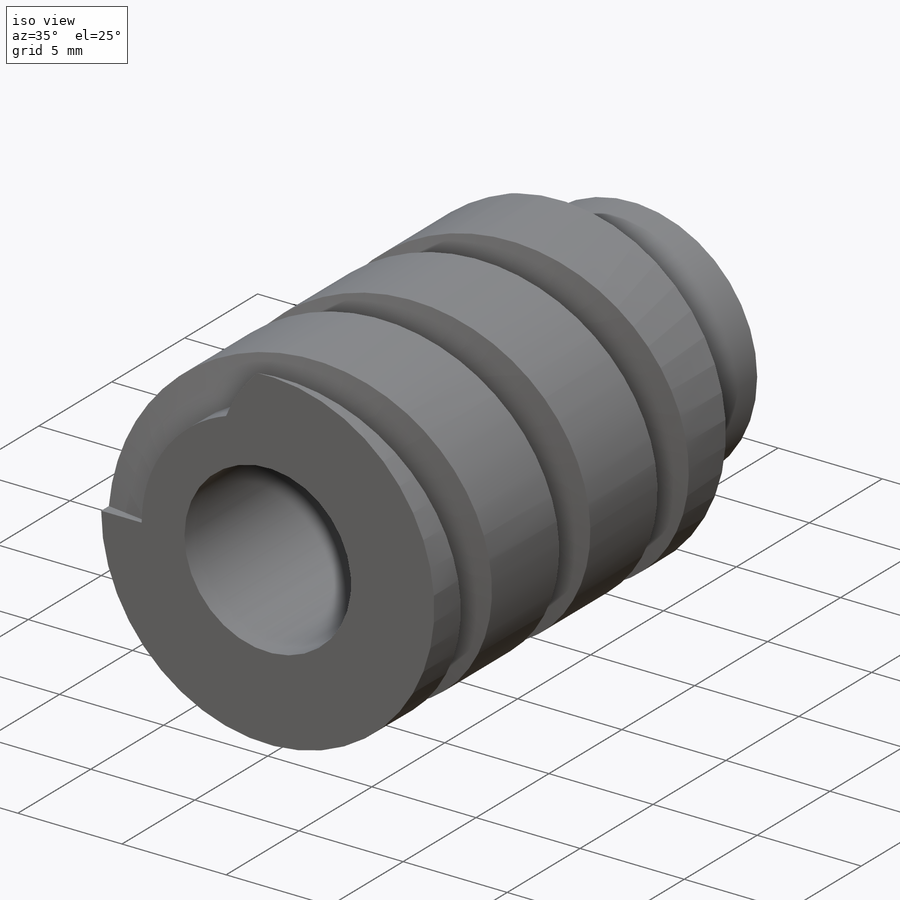
[diagram: iso view]
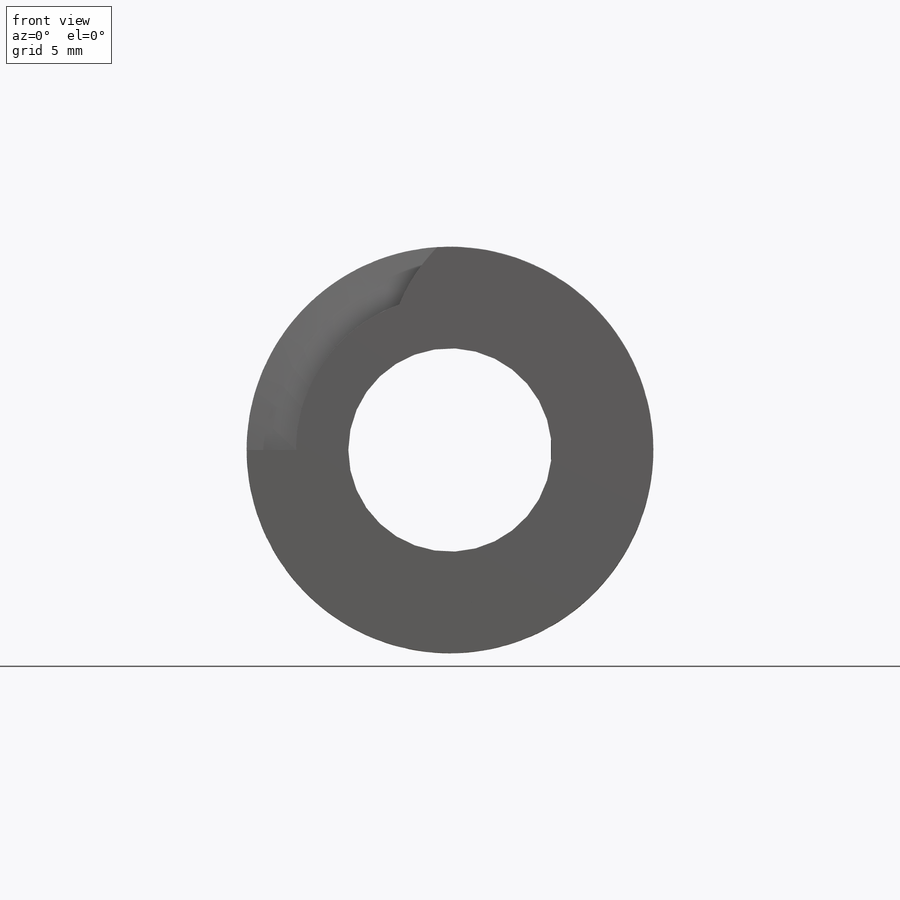
[diagram: front view]
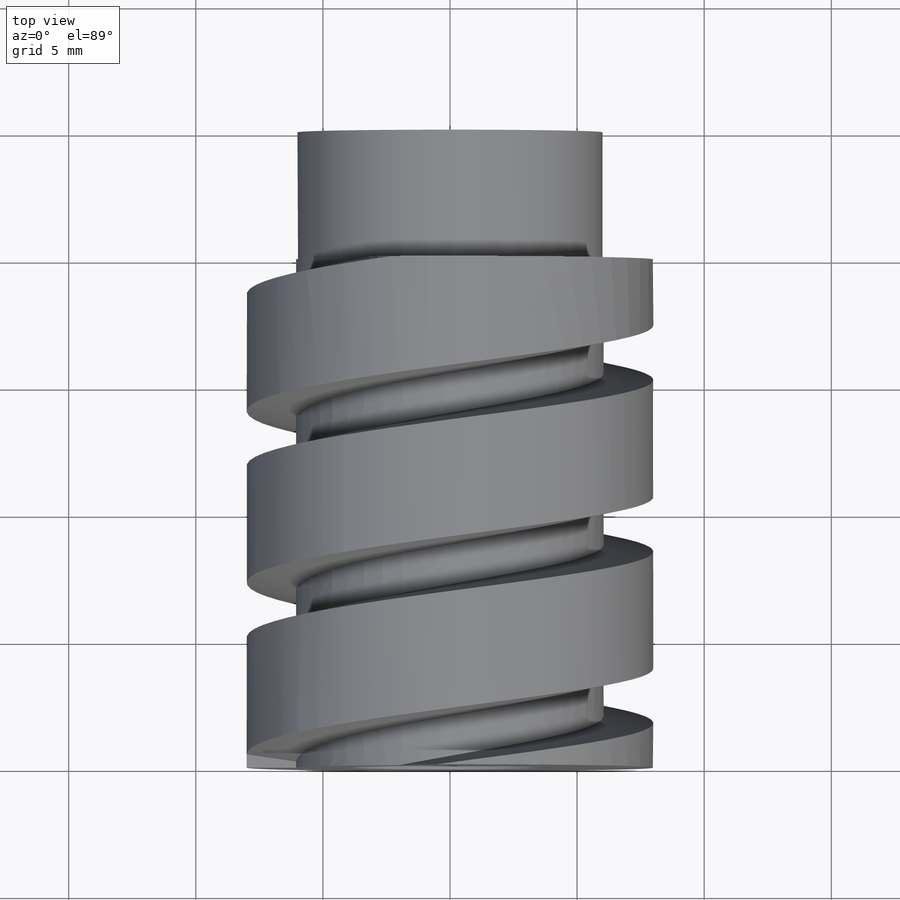
[diagram: top view]
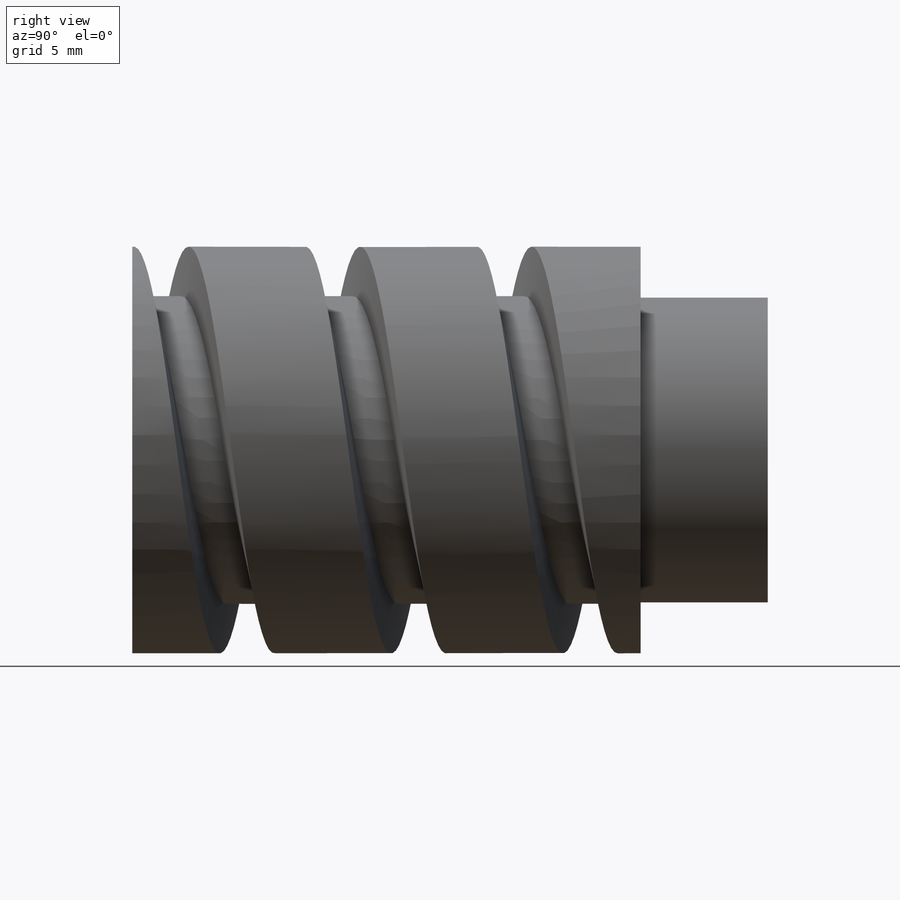
[diagram: right view]
SOLIDWORKS PART (.sldprt)
format: sldprt  version: not decoded by parser v0  size: 461,312 bytes
history: native  units: mm
features: sketch x4, plane x3, extrude x2, material x1, helix x1, sweep x1 (+8 scaffold rows collapsed)
feature tree (20):
  scaffold x8  (default folders/planes/origin — collapsed)
  material  "Material <sin especificar>"
  plane  "Alzado"
  plane  "Planta"
  plane  "Vista lateral"
  sketch  "Croquis1"  dims[D1=~9.723827mm]
  extrude  "Saliente-Extruir1"  Depth=20mm
  sketch  "Croquis2"  dims[D1=~5.748556mm]
  extrude  "Saliente-Extruir2"  Depth=5mm
  sketch  "Croquis3"  dims[D1=8.0mm]
  helix  "Hélice/Espiral1"  Pitch=27mm
  sketch  "Croquis4"  dims[D1=2.0mm D2=0.5mm]
  sweep  "Cortar-Barrer4"
decode coverage: 7 of 8 modeling features carry decoded parameters
note: ~ marks probable driven/reference dimensions
note: suppression state not decoded; provenance and decode notes live in map.json
